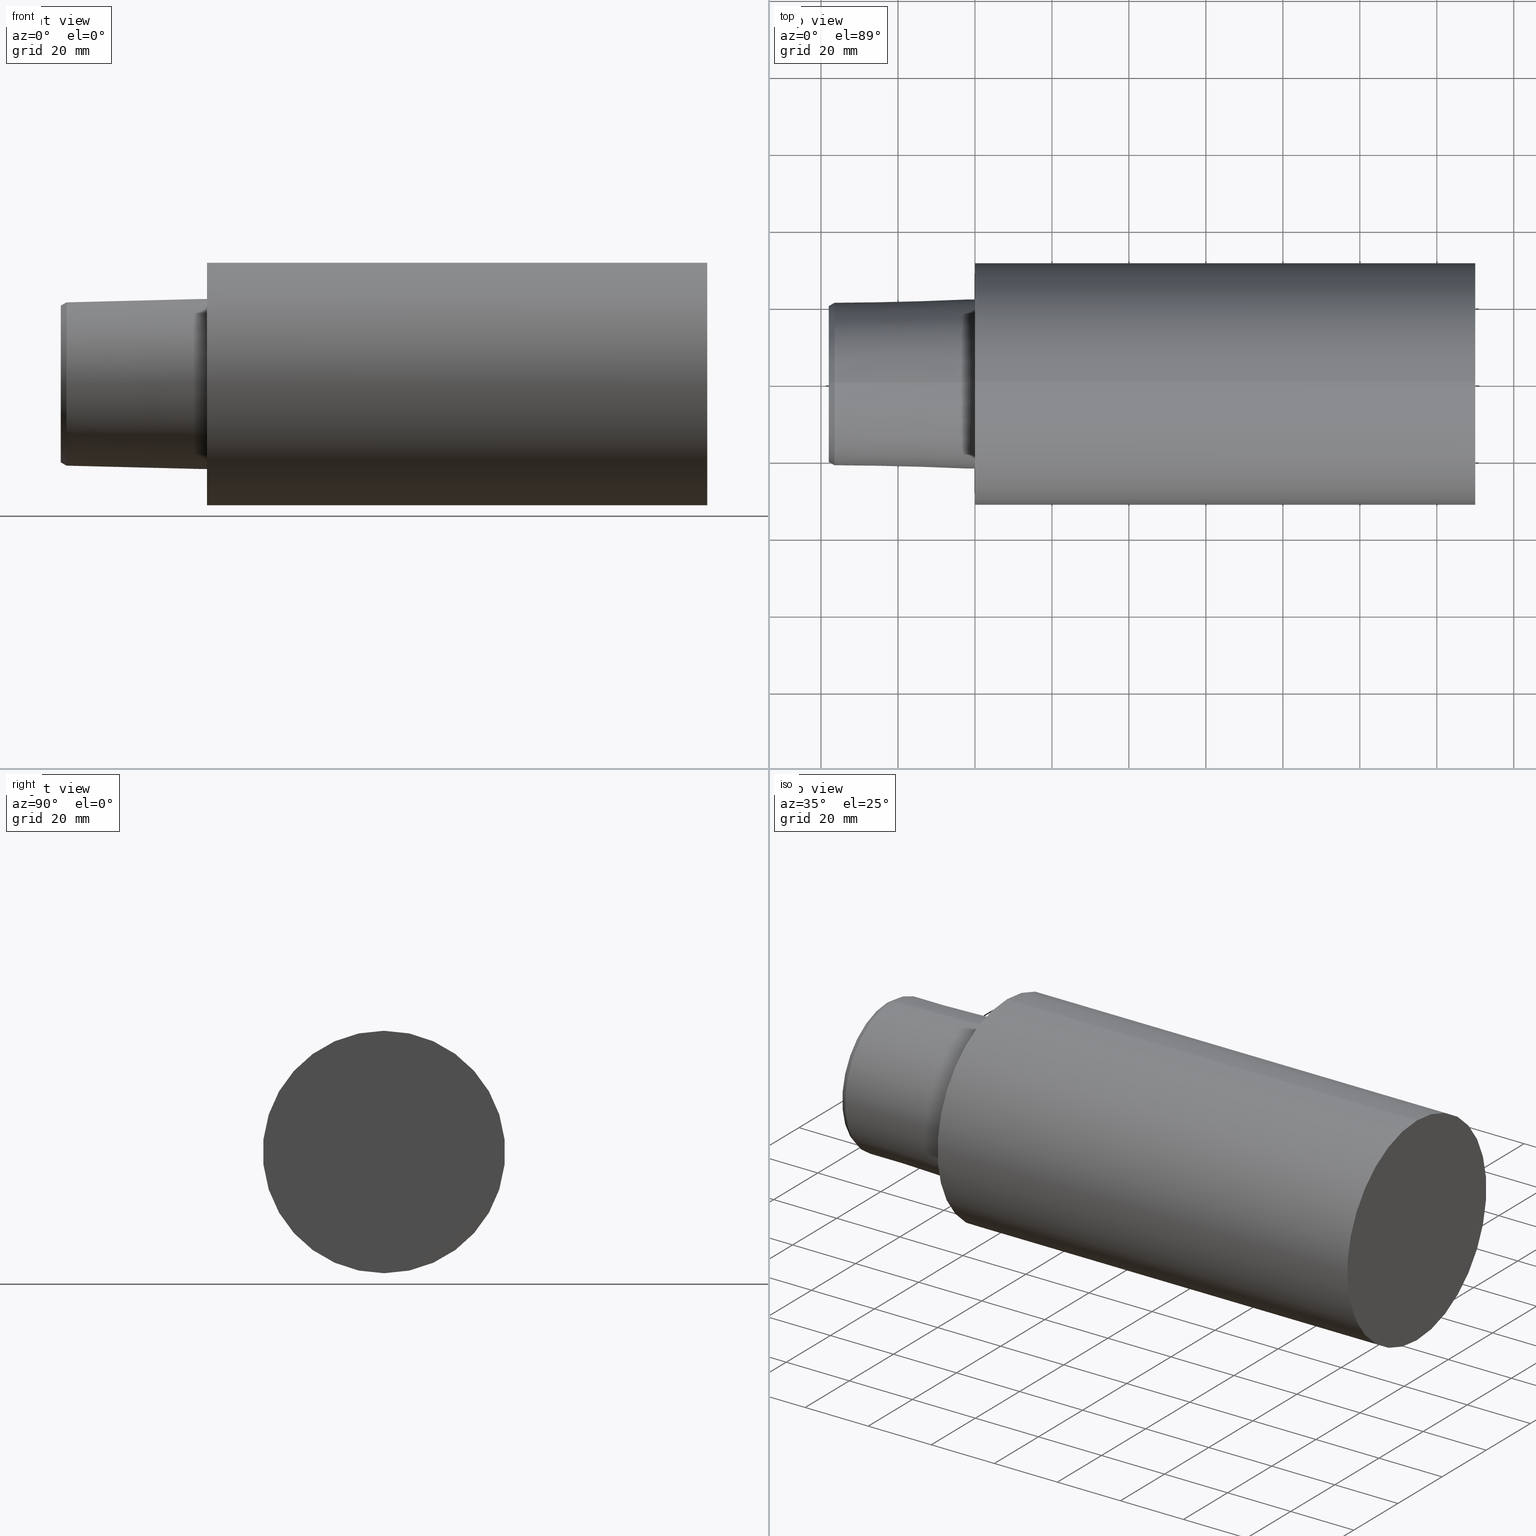
[diagram: canonical four-view strip — front | top / right | iso, engineering-drawing reading convention]
A machine part, canonical four-view strip (front | top / right | iso — engineering-drawing reading convention). The complete STEP part file that produces these views, byte-faithful:
ISO-10303-21;
HEADER;
FILE_DESCRIPTION (( 'STEP AP203' ),
    '1' );
FILE_NAME ('C6-F63-130.stp',
    '2022-03-11T15:31:57',
    ( '' ),
    ( '' ),
    'SwSTEP 2.0',
    'SolidWorks 2021',
    '' );
FILE_SCHEMA (( 'CONFIG_CONTROL_DESIGN' ));
ENDSEC;

DATA;
#1 = CARTESIAN_POINT ( 'NONE',  ( -1.638711037459195739E-09, 3.857637413726965239E-15, -31.49999997070834823 ) ) ;
#2 = FACE_OUTER_BOUND ( 'NONE', #254, .T. ) ;
#3 = DIRECTION ( 'NONE',  ( 0.000000000000000000, 0.000000000000000000, 1.000000000000000000 ) ) ;
#4 = CARTESIAN_POINT ( 'NONE',  ( -36.49999996440870120, 0.000000000000000000, -21.21334400120073482 ) ) ;
#5 = DIRECTION ( 'NONE',  ( -1.000000000000000000, 0.000000000000000000, 0.000000000000000000 ) ) ;
#6 = AXIS2_PLACEMENT_3D ( 'NONE', #106, #355, #108 ) ;
#7 = FACE_OUTER_BOUND ( 'NONE', #159, .T. ) ;
#8 = CONICAL_SURFACE ( 'NONE', #210, 22.07078639032614120, 0.02499311507610003230 ) ;
#9 = DIRECTION ( 'NONE',  ( -1.000000000000000000, 0.000000000000000000, 0.000000000000000000 ) ) ;
#10 = CC_DESIGN_DATE_AND_TIME_ASSIGNMENT ( #155, #302, ( #162 ) ) ;
#11 = FACE_OUTER_BOUND ( 'NONE', #350, .T. ) ;
#12 = DIRECTION ( 'NONE',  ( 0.000000000000000000, 0.000000000000000000, 1.000000000000000000 ) ) ;
#13 = CIRCLE ( 'NONE', #128, 20.34731859924573172 ) ;
#14 = AXIS2_PLACEMENT_3D ( 'NONE', #256, #90, #88 ) ;
#15 = PERSON_AND_ORGANIZATION ( #67, #97 ) ;
#16 = VERTEX_POINT ( 'NONE', #222 ) ;
#17 = DIRECTION ( 'NONE',  ( -1.000000000000000000, 0.000000000000000000, 0.000000000000000000 ) ) ;
#18 = VERTEX_POINT ( 'NONE', #55 ) ;
#19 = APPLICATION_PROTOCOL_DEFINITION ( 'international standard', 'config_control_design', 1994, #38 ) ;
#20 = ORIENTED_EDGE ( 'NONE', *, *, #94, .F. ) ;
#21 = CARTESIAN_POINT ( 'NONE',  ( -2.199999999394708361, 2.702891790757786195E-15, 22.07078639032614120 ) ) ;
#22 = ORIENTED_EDGE ( 'NONE', *, *, #161, .T. ) ;
#23 = CC_DESIGN_PERSON_AND_ORGANIZATION_ASSIGNMENT ( #71, #180, ( #162 ) ) ;
#24 = EDGE_CURVE ( 'NONE', #157, #253, #132, .T. ) ;
#25 = CARTESIAN_POINT ( 'NONE',  ( 129.9999998657614242, 0.000000000000000000, 0.000000000000000000 ) ) ;
#26 = PLANE ( 'NONE',  #48 ) ;
#27 = DIRECTION ( 'NONE',  ( -1.000000000000000000, 0.000000000000000000, 0.000000000000000000 ) ) ;
#28 = EDGE_LOOP ( 'NONE', ( #275, #311, #319, #343 ) ) ;
#29 = DIRECTION ( 'NONE',  ( 0.000000000000000000, 0.000000000000000000, 1.000000000000000000 ) ) ;
#30 = DIRECTION ( 'NONE',  ( 0.000000000000000000, 0.000000000000000000, -1.000000000000000000 ) ) ;
#31 = ADVANCED_FACE ( 'NONE', ( #191, #2 ), #26, .F. ) ;
#32 = DIRECTION ( 'NONE',  ( -1.000000000000000000, 0.000000000000000000, 0.000000000000000000 ) ) ;
#33 = CARTESIAN_POINT ( 'NONE',  ( -37.99999996124000035, 0.000000000000000000, -20.34731859924573172 ) ) ;
#34 = EDGE_CURVE ( 'NONE', #157, #282, #13, .T. ) ;
#35 = FACE_OUTER_BOUND ( 'NONE', #184, .T. ) ;
#36 = AXIS2_PLACEMENT_3D ( 'NONE', #260, #228, #199 ) ;
#37 = CARTESIAN_POINT ( 'NONE',  ( -2.199999999394708361, 0.000000000000000000, -22.07078639032614120 ) ) ;
#38 = APPLICATION_CONTEXT ( 'configuration controlled 3d designs of mechanical parts and assemblies' ) ;
#39 = COORDINATED_UNIVERSAL_TIME_OFFSET ( 6, 0, .BEHIND. ) ;
#40 = APPROVAL_DATE_TIME ( #293, #284 ) ;
#41 = AXIS2_PLACEMENT_3D ( 'NONE', #135, #27, #195 ) ;
#42 = EDGE_LOOP ( 'NONE', ( #178, #237, #22, #323 ) ) ;
#43 = EDGE_CURVE ( 'NONE', #77, #72, #53, .T. ) ;
#44 = CALENDAR_DATE ( 2022, 11, 3 ) ;
#45 =( NAMED_UNIT ( * ) SI_UNIT ( $, .STERADIAN. ) SOLID_ANGLE_UNIT ( ) );
#46 = EDGE_LOOP ( 'NONE', ( #165, #326 ) ) ;
#47 = EDGE_CURVE ( 'NONE', #16, #208, #279, .T. ) ;
#48 = AXIS2_PLACEMENT_3D ( 'NONE', #223, #221, #283 ) ;
#49 = CIRCLE ( 'NONE', #111, 31.49999997070834823 ) ;
#50 = VERTEX_POINT ( 'NONE', #83 ) ;
#51 = DIRECTION ( 'NONE',  ( -1.000000000000000000, 0.000000000000000000, 0.000000000000000000 ) ) ;
#52 = APPROVAL_STATUS ( 'not_yet_approved' ) ;
#53 = LINE ( 'NONE', #225, #113 ) ;
#54 = CIRCLE ( 'NONE', #82, 20.34731859924573172 ) ;
#55 = CARTESIAN_POINT ( 'NONE',  ( -1.638711037459195739E-09, 0.000000000000000000, 31.49999997070834823 ) ) ;
#56 = LINE ( 'NONE', #353, #198 ) ;
#57 = EDGE_CURVE ( 'NONE', #72, #18, #92, .T. ) ;
#58 = CARTESIAN_POINT ( 'NONE',  ( -37.99999996124000035, 0.000000000000000000, 0.000000000000000000 ) ) ;
#59 = EDGE_CURVE ( 'NONE', #247, #208, #56, .T. ) ;
#60 = CIRCLE ( 'NONE', #265, 22.07078639032614120 ) ;
#61 = DIRECTION ( 'NONE',  ( 1.000000000000000000, 0.000000000000000000, 0.000000000000000000 ) ) ;
#62 = CARTESIAN_POINT ( 'NONE',  ( -2.199999999394708361, 0.000000000000000000, 0.000000000000000000 ) ) ;
#63 = LOCAL_TIME ( 9, 31, 57.00000000000000000, #109 ) ;
#64 = LINE ( 'NONE', #4, #301 ) ;
#65 = LINE ( 'NONE', #37, #280 ) ;
#66 = CONICAL_SURFACE ( 'NONE', #329, 21.21334400120073482, 0.5235987755982987046 ) ;
#67 = PERSON ( 'UNSPECIFIED', 'UNSPECIFIED', 'UNSPECIFIED', ('UNSPECIFIED'), ('UNSPECIFIED'), ('UNSPECIFIED') ) ;
#68 = DIRECTION ( 'NONE',  ( 0.000000000000000000, 0.000000000000000000, 1.000000000000000000 ) ) ;
#69 = AXIS2_PLACEMENT_3D ( 'NONE', #322, #12, #271 ) ;
#70 = EDGE_CURVE ( 'NONE', #208, #16, #218, .T. ) ;
#71 = PERSON_AND_ORGANIZATION ( #67, #97 ) ;
#72 = VERTEX_POINT ( 'NONE', #1 ) ;
#73 = ORIENTED_EDGE ( 'NONE', *, *, #43, .F. ) ;
#74 = APPROVAL ( #102, 'UNSPECIFIED' ) ;
#75 = ORIENTED_EDGE ( 'NONE', *, *, #151, .F. ) ;
#76 = APPLICATION_CONTEXT ( 'configuration controlled 3d designs of mechanical parts and assemblies' ) ;
#77 = VERTEX_POINT ( 'NONE', #104 ) ;
#78 = CARTESIAN_POINT ( 'NONE',  ( -37.99999996124000035, 0.000000000000000000, 22.07078639032614120 ) ) ;
#79 = APPROVAL_DATE_TIME ( #217, #134 ) ;
#80 = CARTESIAN_POINT ( 'NONE',  ( -37.99999996124000035, 2.544856621203993748E-15, 20.34731859924573172 ) ) ;
#81 = CARTESIAN_POINT ( 'NONE',  ( -36.49999996440870120, 0.000000000000000000, 0.000000000000000000 ) ) ;
#82 = AXIS2_PLACEMENT_3D ( 'NONE', #268, #17, #266 ) ;
#83 = CARTESIAN_POINT ( 'NONE',  ( -36.49999996440870120, 0.000000000000000000, -21.21334400120073482 ) ) ;
#84 = LOCAL_TIME ( 9, 31, 57.00000000000000000, #39 ) ;
#85 = CARTESIAN_POINT ( 'NONE',  ( -2.199999999394708361, 0.000000000000000000, 0.000000000000000000 ) ) ;
#86 = FACE_OUTER_BOUND ( 'NONE', #348, .T. ) ;
#87 = CIRCLE ( 'NONE', #136, 31.49999997070834823 ) ;
#88 = DIRECTION ( 'NONE',  ( 0.000000000000000000, 0.000000000000000000, 1.000000000000000000 ) ) ;
#89 = CARTESIAN_POINT ( 'NONE',  ( -2.199999999394708361, 0.000000000000000000, 0.000000000000000000 ) ) ;
#90 = DIRECTION ( 'NONE',  ( -1.000000000000000000, 0.000000000000000000, 0.000000000000000000 ) ) ;
#91 = MANIFOLD_SOLID_BREP ( 'Scale1', #192 ) ;
#92 = CIRCLE ( 'NONE', #141, 31.49999997070834823 ) ;
#93 = DIRECTION ( 'NONE',  ( 0.000000000000000000, 0.000000000000000000, 1.000000000000000000 ) ) ;
#94 = EDGE_CURVE ( 'NONE', #110, #16, #140, .T. ) ;
#95 = APPROVAL_ROLE ( '' ) ;
#96 = ORIENTED_EDGE ( 'NONE', *, *, #255, .T. ) ;
#97 = ORGANIZATION ( 'UNSPECIFIED', 'UNSPECIFIED', '' ) ;
#98 = PERSON_AND_ORGANIZATION_ROLE ( 'design_supplier' ) ;
#99 = ORIENTED_EDGE ( 'NONE', *, *, #24, .F. ) ;
#100 = AXIS2_PLACEMENT_3D ( 'NONE', #188, #137, #304 ) ;
#101 = ORIENTED_EDGE ( 'NONE', *, *, #47, .F. ) ;
#102 = APPROVAL_STATUS ( 'not_yet_approved' ) ;
#103 = ORIENTED_EDGE ( 'NONE', *, *, #333, .F. ) ;
#104 = CARTESIAN_POINT ( 'NONE',  ( 129.9999998657614242, 3.857637413726965239E-15, -31.49999997070834823 ) ) ;
#105 = EDGE_CURVE ( 'NONE', #18, #72, #153, .T. ) ;
#106 = CARTESIAN_POINT ( 'NONE',  ( -1.638711037459195739E-09, 0.000000000000000000, 0.000000000000000000 ) ) ;
#107 = CC_DESIGN_SECURITY_CLASSIFICATION ( #162, ( #318 ) ) ;
#108 = DIRECTION ( 'NONE',  ( 0.000000000000000000, 0.000000000000000000, 1.000000000000000000 ) ) ;
#109 = COORDINATED_UNIVERSAL_TIME_OFFSET ( 6, 0, .BEHIND. ) ;
#110 = VERTEX_POINT ( 'NONE', #250 ) ;
#111 = AXIS2_PLACEMENT_3D ( 'NONE', #315, #32, #93 ) ;
#112 = CC_DESIGN_PERSON_AND_ORGANIZATION_ASSIGNMENT ( #15, #239, ( #318 ) ) ;
#113 = VECTOR ( 'NONE', #164, 1000.000000000000000 ) ;
#114 = AXIS2_PLACEMENT_3D ( 'NONE', #233, #9, #317 ) ;
#115 = DIRECTION ( 'NONE',  ( -1.000000000000000000, 0.000000000000000000, 0.000000000000000000 ) ) ;
#116 = CARTESIAN_POINT ( 'NONE',  ( -37.99999996124000035, 20.34731859924573172, 0.000000000000000000 ) ) ;
#117 = PRODUCT_DEFINITION_SHAPE ( 'NONE', 'NONE',  #138 ) ;
#118 = FACE_OUTER_BOUND ( 'NONE', #127, .T. ) ;
#119 = CYLINDRICAL_SURFACE ( 'NONE', #36, 22.07078639032614120 ) ;
#120 = CARTESIAN_POINT ( 'NONE',  ( -37.99999996124000035, 0.000000000000000000, 31.49999997070834823 ) ) ;
#121 = DIRECTION ( 'NONE',  ( 1.000000000000000000, 0.000000000000000000, 0.000000000000000000 ) ) ;
#122 = EDGE_CURVE ( 'NONE', #247, #110, #354, .T. ) ;
#123 = ORIENTED_EDGE ( 'NONE', *, *, #57, .T. ) ;
#124 = PERSON_AND_ORGANIZATION ( #67, #97 ) ;
#125 = ORIENTED_EDGE ( 'NONE', *, *, #43, .T. ) ;
#126 = CALENDAR_DATE ( 2022, 11, 3 ) ;
#127 = EDGE_LOOP ( 'NONE', ( #156, #125, #278, #154 ) ) ;
#128 = AXIS2_PLACEMENT_3D ( 'NONE', #58, #115, #167 ) ;
#129 = AXIS2_PLACEMENT_3D ( 'NONE', #116, #61, #235 ) ;
#130 = EDGE_LOOP ( 'NONE', ( #216, #321 ) ) ;
#131 =( LENGTH_UNIT ( ) NAMED_UNIT ( * ) SI_UNIT ( .MILLI., .METRE. ) );
#132 = LINE ( 'NONE', #249, #168 ) ;
#133 = CC_DESIGN_PERSON_AND_ORGANIZATION_ASSIGNMENT ( #320, #290, ( #138 ) ) ;
#134 = APPROVAL ( #52, 'UNSPECIFIED' ) ;
#135 = CARTESIAN_POINT ( 'NONE',  ( -1.638711037459195739E-09, 0.000000000000000000, 0.000000000000000000 ) ) ;
#136 = AXIS2_PLACEMENT_3D ( 'NONE', #25, #327, #220 ) ;
#137 = DIRECTION ( 'NONE',  ( -1.000000000000000000, 0.000000000000000000, 0.000000000000000000 ) ) ;
#138 = PRODUCT_DEFINITION ( 'UNKNOWN', '', #318, #202 ) ;
#139 = ORIENTED_EDGE ( 'NONE', *, *, #351, .F. ) ;
#140 = LINE ( 'NONE', #78, #147 ) ;
#141 = AXIS2_PLACEMENT_3D ( 'NONE', #194, #281, #310 ) ;
#142 = AXIS2_PLACEMENT_3D ( 'NONE', #312, #169, #257 ) ;
#143 = FACE_OUTER_BOUND ( 'NONE', #300, .T. ) ;
#144 = APPROVAL_PERSON_ORGANIZATION ( #189, #134, #274 ) ;
#145 = DIRECTION ( 'NONE',  ( 0.000000000000000000, 0.000000000000000000, 1.000000000000000000 ) ) ;
#146 = DIRECTION ( 'NONE',  ( -1.000000000000000000, 0.000000000000000000, 0.000000000000000000 ) ) ;
#147 = VECTOR ( 'NONE', #251, 1000.000000000000000 ) ;
#148 = VECTOR ( 'NONE', #146, 1000.000000000000000 ) ;
#149 = DIRECTION ( 'NONE',  ( 0.8660254037844387076, 0.000000000000000000, -0.4999999999999998890 ) ) ;
#150 = CARTESIAN_POINT ( 'NONE',  ( -1.638711037459195739E-09, 0.000000000000000000, 0.000000000000000000 ) ) ;
#151 = EDGE_CURVE ( 'NONE', #160, #77, #87, .T. ) ;
#152 = DATE_AND_TIME ( #183, #84 ) ;
#153 = CIRCLE ( 'NONE', #41, 31.49999997070834823 ) ;
#154 = ORIENTED_EDGE ( 'NONE', *, *, #203, .F. ) ;
#155 = DATE_AND_TIME ( #44, #305 ) ;
#156 = ORIENTED_EDGE ( 'NONE', *, *, #151, .T. ) ;
#157 = VERTEX_POINT ( 'NONE', #80 ) ;
#158 = AXIS2_PLACEMENT_3D ( 'NONE', #197, #5, #68 ) ;
#159 = EDGE_LOOP ( 'NONE', ( #75, #212 ) ) ;
#160 = VERTEX_POINT ( 'NONE', #325 ) ;
#161 = EDGE_CURVE ( 'NONE', #253, #50, #179, .T. ) ;
#162 = SECURITY_CLASSIFICATION ( '', '', #209 ) ;
#163 = DIRECTION ( 'NONE',  ( -1.000000000000000000, 0.000000000000000000, 0.000000000000000000 ) ) ;
#164 = DIRECTION ( 'NONE',  ( -1.000000000000000000, 0.000000000000000000, 0.000000000000000000 ) ) ;
#165 = ORIENTED_EDGE ( 'NONE', *, *, #255, .F. ) ;
#166 = DIRECTION ( 'NONE',  ( -1.000000000000000000, 0.000000000000000000, 0.000000000000000000 ) ) ;
#167 = DIRECTION ( 'NONE',  ( 0.000000000000000000, 0.000000000000000000, 1.000000000000000000 ) ) ;
#168 = VECTOR ( 'NONE', #330, 1000.000000000000000 ) ;
#169 = DIRECTION ( 'NONE',  ( -1.000000000000000000, 0.000000000000000000, 0.000000000000000000 ) ) ;
#170 = ADVANCED_FACE ( 'NONE', ( #307 ), #232, .T. ) ;
#171 = FACE_OUTER_BOUND ( 'NONE', #28, .T. ) ;
#172 = ADVANCED_FACE ( 'NONE', ( #35 ), #119, .T. ) ;
#173 = CYLINDRICAL_SURFACE ( 'NONE', #114, 22.07078639032614120 ) ;
#174 = CC_DESIGN_DATE_AND_TIME_ASSIGNMENT ( #152, #340, ( #138 ) ) ;
#175 = DIRECTION ( 'NONE',  ( -1.000000000000000000, 0.000000000000000000, 0.000000000000000000 ) ) ;
#176 = PERSON_AND_ORGANIZATION ( #67, #97 ) ;
#177 = CALENDAR_DATE ( 2022, 11, 3 ) ;
#178 = ORIENTED_EDGE ( 'NONE', *, *, #34, .F. ) ;
#179 = CIRCLE ( 'NONE', #100, 21.21334400120073482 ) ;
#180 = PERSON_AND_ORGANIZATION_ROLE ( 'classification_officer' ) ;
#181 = ORIENTED_EDGE ( 'NONE', *, *, #94, .T. ) ;
#182 = COORDINATED_UNIVERSAL_TIME_OFFSET ( 6, 0, .BEHIND. ) ;
#183 = CALENDAR_DATE ( 2022, 11, 3 ) ;
#184 = EDGE_LOOP ( 'NONE', ( #243, #190, #181, #297 ) ) ;
#185 = PRODUCT_RELATED_PRODUCT_CATEGORY ( 'detail', '', ( #298 ) ) ;
#186 = CC_DESIGN_PERSON_AND_ORGANIZATION_ASSIGNMENT ( #342, #98, ( #318 ) ) ;
#187 = ORIENTED_EDGE ( 'NONE', *, *, #333, .T. ) ;
#188 = CARTESIAN_POINT ( 'NONE',  ( -36.49999996440870120, 0.000000000000000000, 0.000000000000000000 ) ) ;
#189 = PERSON_AND_ORGANIZATION ( #67, #97 ) ;
#190 = ORIENTED_EDGE ( 'NONE', *, *, #122, .T. ) ;
#191 = FACE_BOUND ( 'NONE', #46, .T. ) ;
#192 = CLOSED_SHELL ( 'NONE', ( #245, #292, #227, #172, #31, #215, #263, #291, #196, #338, #170 ) ) ;
#193 = AXIS2_PLACEMENT_3D ( 'NONE', #314, #335, #145 ) ;
#194 = CARTESIAN_POINT ( 'NONE',  ( -1.638711037459195739E-09, 0.000000000000000000, 0.000000000000000000 ) ) ;
#195 = DIRECTION ( 'NONE',  ( 0.000000000000000000, 0.000000000000000000, 1.000000000000000000 ) ) ;
#196 = ADVANCED_FACE ( 'NONE', ( #261 ), #173, .T. ) ;
#197 = CARTESIAN_POINT ( 'NONE',  ( 129.9999998657612252, 0.000000000000000000, 0.000000000000000000 ) ) ;
#198 = VECTOR ( 'NONE', #166, 1000.000000000000000 ) ;
#199 = DIRECTION ( 'NONE',  ( 0.000000000000000000, 0.000000000000000000, 1.000000000000000000 ) ) ;
#200 = CC_DESIGN_APPROVAL ( #284, ( #318 ) ) ;
#201 = DIRECTION ( 'NONE',  ( 1.000000000000000000, 0.000000000000000000, 0.000000000000000000 ) ) ;
#202 = DESIGN_CONTEXT ( 'detailed design', #76, 'design' ) ;
#203 = EDGE_CURVE ( 'NONE', #160, #18, #288, .T. ) ;
#204 = DIRECTION ( 'NONE',  ( 0.000000000000000000, 0.000000000000000000, 1.000000000000000000 ) ) ;
#205 =( GEOMETRIC_REPRESENTATION_CONTEXT ( 3 ) GLOBAL_UNCERTAINTY_ASSIGNED_CONTEXT ( ( #336 ) ) GLOBAL_UNIT_ASSIGNED_CONTEXT ( ( #131, #272, #45 ) ) REPRESENTATION_CONTEXT ( 'NONE', 'WORKASPACE' ) );
#206 = CARTESIAN_POINT ( 'NONE',  ( -2.199999999394708361, 2.702891790757786195E-15, -22.07078639032614120 ) ) ;
#207 = COORDINATED_UNIVERSAL_TIME_OFFSET ( 6, 0, .BEHIND. ) ;
#208 = VERTEX_POINT ( 'NONE', #206 ) ;
#209 = SECURITY_CLASSIFICATION_LEVEL ( 'unclassified' ) ;
#210 = AXIS2_PLACEMENT_3D ( 'NONE', #89, #201, #344 ) ;
#211 = APPROVAL_ROLE ( '' ) ;
#212 = ORIENTED_EDGE ( 'NONE', *, *, #309, .F. ) ;
#213 = DATE_AND_TIME ( #126, #258 ) ;
#214 = ORIENTED_EDGE ( 'NONE', *, *, #105, .T. ) ;
#215 = ADVANCED_FACE ( 'NONE', ( #143 ), #259, .T. ) ;
#216 = ORIENTED_EDGE ( 'NONE', *, *, #351, .T. ) ;
#217 = DATE_AND_TIME ( #277, #63 ) ;
#218 = CIRCLE ( 'NONE', #264, 22.07078639032614120 ) ;
#219 = CONICAL_SURFACE ( 'NONE', #324, 22.07078639032614120, 0.02499311507610003230 ) ;
#220 = DIRECTION ( 'NONE',  ( 0.000000000000000000, 0.000000000000000000, 1.000000000000000000 ) ) ;
#221 = DIRECTION ( 'NONE',  ( 1.000000000000000000, 0.000000000000000000, 0.000000000000000000 ) ) ;
#222 = CARTESIAN_POINT ( 'NONE',  ( -2.199999999394708361, 0.000000000000000000, 22.07078639032614120 ) ) ;
#223 = CARTESIAN_POINT ( 'NONE',  ( -1.638710153022111881E-09, 31.49999997070834823, 0.000000000000000000 ) ) ;
#224 = VECTOR ( 'NONE', #296, 1000.000000000000114 ) ;
#225 = CARTESIAN_POINT ( 'NONE',  ( -37.99999996124000035, 3.857637413726965239E-15, -31.49999997070834823 ) ) ;
#226 = EDGE_CURVE ( 'NONE', #282, #50, #64, .T. ) ;
#227 = ADVANCED_FACE ( 'NONE', ( #86 ), #219, .T. ) ;
#228 = DIRECTION ( 'NONE',  ( -1.000000000000000000, 0.000000000000000000, 0.000000000000000000 ) ) ;
#229 = ADVANCED_BREP_SHAPE_REPRESENTATION ( 'C6-F63-130', ( #91, #69 ), #205 ) ;
#230 = FACE_OUTER_BOUND ( 'NONE', #130, .T. ) ;
#231 = AXIS2_PLACEMENT_3D ( 'NONE', #81, #308, #30 ) ;
#232 = CONICAL_SURFACE ( 'NONE', #231, 21.21334400120073482, 0.5235987755982987046 ) ;
#233 = CARTESIAN_POINT ( 'NONE',  ( -37.99999996124000035, 0.000000000000000000, 0.000000000000000000 ) ) ;
#234 = CARTESIAN_POINT ( 'NONE',  ( -1.638711037459195739E-09, 2.702891790757786195E-15, -22.07078639032614120 ) ) ;
#235 = DIRECTION ( 'NONE',  ( 0.000000000000000000, 1.000000000000000000, 0.000000000000000000 ) ) ;
#236 = APPROVAL_STATUS ( 'not_yet_approved' ) ;
#237 = ORIENTED_EDGE ( 'NONE', *, *, #24, .T. ) ;
#238 = CC_DESIGN_PERSON_AND_ORGANIZATION_ASSIGNMENT ( #124, #347, ( #298 ) ) ;
#239 = PERSON_AND_ORGANIZATION_ROLE ( 'creator' ) ;
#240 = CC_DESIGN_APPROVAL ( #74, ( #138 ) ) ;
#241 = ORIENTED_EDGE ( 'NONE', *, *, #59, .T. ) ;
#242 = APPROVAL_DATE_TIME ( #213, #74 ) ;
#243 = ORIENTED_EDGE ( 'NONE', *, *, #59, .F. ) ;
#244 = ORIENTED_EDGE ( 'NONE', *, *, #70, .T. ) ;
#245 = ADVANCED_FACE ( 'NONE', ( #230 ), #287, .F. ) ;
#246 = MECHANICAL_CONTEXT ( 'NONE', #38, 'mechanical' ) ;
#247 = VERTEX_POINT ( 'NONE', #234 ) ;
#248 = SHAPE_DEFINITION_REPRESENTATION ( #117, #229 ) ;
#249 = CARTESIAN_POINT ( 'NONE',  ( -36.49999996440870120, 2.597885383028215483E-15, 21.21334400120073482 ) ) ;
#250 = CARTESIAN_POINT ( 'NONE',  ( -1.638711037459195739E-09, 0.000000000000000000, 22.07078639032614120 ) ) ;
#251 = DIRECTION ( 'NONE',  ( -1.000000000000000000, 0.000000000000000000, 0.000000000000000000 ) ) ;
#252 = APPROVAL_PERSON_ORGANIZATION ( #262, #284, #95 ) ;
#253 = VERTEX_POINT ( 'NONE', #332 ) ;
#254 = EDGE_LOOP ( 'NONE', ( #214, #123 ) ) ;
#255 = EDGE_CURVE ( 'NONE', #110, #247, #60, .T. ) ;
#256 = CARTESIAN_POINT ( 'NONE',  ( -37.99999996124000035, 0.000000000000000000, 0.000000000000000000 ) ) ;
#257 = DIRECTION ( 'NONE',  ( 0.000000000000000000, 0.000000000000000000, 1.000000000000000000 ) ) ;
#258 = LOCAL_TIME ( 9, 31, 57.00000000000000000, #182 ) ;
#259 = CYLINDRICAL_SURFACE ( 'NONE', #14, 31.49999997070834823 ) ;
#260 = CARTESIAN_POINT ( 'NONE',  ( -37.99999996124000035, 0.000000000000000000, 0.000000000000000000 ) ) ;
#261 = FACE_OUTER_BOUND ( 'NONE', #267, .T. ) ;
#262 = PERSON_AND_ORGANIZATION ( #67, #97 ) ;
#263 = ADVANCED_FACE ( 'NONE', ( #7 ), #339, .F. ) ;
#264 = AXIS2_PLACEMENT_3D ( 'NONE', #85, #163, #29 ) ;
#265 = AXIS2_PLACEMENT_3D ( 'NONE', #150, #175, #204 ) ;
#266 = DIRECTION ( 'NONE',  ( 0.000000000000000000, 0.000000000000000000, 1.000000000000000000 ) ) ;
#267 = EDGE_LOOP ( 'NONE', ( #96, #241, #101, #20 ) ) ;
#268 = CARTESIAN_POINT ( 'NONE',  ( -37.99999996124000035, 0.000000000000000000, 0.000000000000000000 ) ) ;
#269 = CC_DESIGN_APPROVAL ( #134, ( #162 ) ) ;
#270 = ORIENTED_EDGE ( 'NONE', *, *, #316, .T. ) ;
#271 = DIRECTION ( 'NONE',  ( 1.000000000000000000, 0.000000000000000000, 0.000000000000000000 ) ) ;
#272 =( NAMED_UNIT ( * ) PLANE_ANGLE_UNIT ( ) SI_UNIT ( $, .RADIAN. ) );
#273 = ORIENTED_EDGE ( 'NONE', *, *, #352, .F. ) ;
#274 = APPROVAL_ROLE ( '' ) ;
#275 = ORIENTED_EDGE ( 'NONE', *, *, #161, .F. ) ;
#276 = LOCAL_TIME ( 9, 31, 57.00000000000000000, #207 ) ;
#277 = CALENDAR_DATE ( 2022, 11, 3 ) ;
#278 = ORIENTED_EDGE ( 'NONE', *, *, #105, .F. ) ;
#279 = CIRCLE ( 'NONE', #328, 22.07078639032614120 ) ;
#280 = VECTOR ( 'NONE', #313, 1000.000000000000114 ) ;
#281 = DIRECTION ( 'NONE',  ( -1.000000000000000000, 0.000000000000000000, 0.000000000000000000 ) ) ;
#282 = VERTEX_POINT ( 'NONE', #33 ) ;
#283 = DIRECTION ( 'NONE',  ( 0.000000000000000000, 1.000000000000000000, 0.000000000000000000 ) ) ;
#284 = APPROVAL ( #236, 'UNSPECIFIED' ) ;
#285 = CARTESIAN_POINT ( 'NONE',  ( -36.49999996440870120, 0.000000000000000000, 0.000000000000000000 ) ) ;
#286 = DIRECTION ( 'NONE',  ( 0.000000000000000000, 0.000000000000000000, -1.000000000000000000 ) ) ;
#287 = PLANE ( 'NONE',  #129 ) ;
#288 = LINE ( 'NONE', #120, #148 ) ;
#289 = DIRECTION ( 'NONE',  ( 0.000000000000000000, 0.000000000000000000, -1.000000000000000000 ) ) ;
#290 = PERSON_AND_ORGANIZATION_ROLE ( 'creator' ) ;
#291 = ADVANCED_FACE ( 'NONE', ( #118 ), #334, .T. ) ;
#292 = ADVANCED_FACE ( 'NONE', ( #11 ), #66, .T. ) ;
#293 = DATE_AND_TIME ( #177, #276 ) ;
#294 = COORDINATED_UNIVERSAL_TIME_OFFSET ( 6, 0, .BEHIND. ) ;
#295 = ORIENTED_EDGE ( 'NONE', *, *, #309, .T. ) ;
#296 = DIRECTION ( 'NONE',  ( 0.9996876883571774730, 3.060455192797006293E-18, 0.02499051314164881313 ) ) ;
#297 = ORIENTED_EDGE ( 'NONE', *, *, #70, .F. ) ;
#298 = PRODUCT ( 'C6-F63-130', 'C6-F63-130', '', ( #246 ) ) ;
#299 = LINE ( 'NONE', #21, #224 ) ;
#300 = EDGE_LOOP ( 'NONE', ( #73, #295, #303, #345 ) ) ;
#301 = VECTOR ( 'NONE', #149, 1000.000000000000000 ) ;
#302 = DATE_TIME_ROLE ( 'classification_date' ) ;
#303 = ORIENTED_EDGE ( 'NONE', *, *, #203, .T. ) ;
#304 = DIRECTION ( 'NONE',  ( 0.000000000000000000, 0.000000000000000000, 1.000000000000000000 ) ) ;
#305 = LOCAL_TIME ( 9, 31, 57.00000000000000000, #294 ) ;
#306 = APPROVAL_PERSON_ORGANIZATION ( #176, #74, #211 ) ;
#307 = FACE_OUTER_BOUND ( 'NONE', #42, .T. ) ;
#308 = DIRECTION ( 'NONE',  ( 1.000000000000000000, 0.000000000000000000, 0.000000000000000000 ) ) ;
#309 = EDGE_CURVE ( 'NONE', #77, #160, #49, .T. ) ;
#310 = DIRECTION ( 'NONE',  ( 0.000000000000000000, 0.000000000000000000, 1.000000000000000000 ) ) ;
#311 = ORIENTED_EDGE ( 'NONE', *, *, #352, .T. ) ;
#312 = CARTESIAN_POINT ( 'NONE',  ( -37.99999996124000035, 0.000000000000000000, 0.000000000000000000 ) ) ;
#313 = DIRECTION ( 'NONE',  ( 0.9996876883571774730, 0.000000000000000000, -0.02499051314164881313 ) ) ;
#314 = CARTESIAN_POINT ( 'NONE',  ( -36.49999996440870120, 0.000000000000000000, 0.000000000000000000 ) ) ;
#315 = CARTESIAN_POINT ( 'NONE',  ( 129.9999998657614242, 0.000000000000000000, 0.000000000000000000 ) ) ;
#316 = EDGE_CURVE ( 'NONE', #50, #208, #65, .T. ) ;
#317 = DIRECTION ( 'NONE',  ( 0.000000000000000000, 0.000000000000000000, 1.000000000000000000 ) ) ;
#318 = PRODUCT_DEFINITION_FORMATION_WITH_SPECIFIED_SOURCE ( 'ANY', '', #298, .NOT_KNOWN. ) ;
#319 = ORIENTED_EDGE ( 'NONE', *, *, #47, .T. ) ;
#320 = PERSON_AND_ORGANIZATION ( #67, #97 ) ;
#321 = ORIENTED_EDGE ( 'NONE', *, *, #34, .T. ) ;
#322 = CARTESIAN_POINT ( 'NONE',  ( 0.000000000000000000, 0.000000000000000000, 0.000000000000000000 ) ) ;
#323 = ORIENTED_EDGE ( 'NONE', *, *, #226, .F. ) ;
#324 = AXIS2_PLACEMENT_3D ( 'NONE', #62, #121, #289 ) ;
#325 = CARTESIAN_POINT ( 'NONE',  ( 129.9999998657614242, 0.000000000000000000, 31.49999997070834823 ) ) ;
#326 = ORIENTED_EDGE ( 'NONE', *, *, #122, .F. ) ;
#327 = DIRECTION ( 'NONE',  ( -1.000000000000000000, 0.000000000000000000, 0.000000000000000000 ) ) ;
#328 = AXIS2_PLACEMENT_3D ( 'NONE', #331, #51, #3 ) ;
#329 = AXIS2_PLACEMENT_3D ( 'NONE', #285, #337, #286 ) ;
#330 = DIRECTION ( 'NONE',  ( 0.8660254037844387076, 6.123233995736768501E-17, 0.4999999999999998890 ) ) ;
#331 = CARTESIAN_POINT ( 'NONE',  ( -2.199999999394708361, 0.000000000000000000, 0.000000000000000000 ) ) ;
#332 = CARTESIAN_POINT ( 'NONE',  ( -36.49999996440870120, 2.650388586893000642E-15, 21.21334400120073482 ) ) ;
#333 = EDGE_CURVE ( 'NONE', #50, #253, #346, .T. ) ;
#334 = CYLINDRICAL_SURFACE ( 'NONE', #142, 31.49999997070834823 ) ;
#335 = DIRECTION ( 'NONE',  ( -1.000000000000000000, 0.000000000000000000, 0.000000000000000000 ) ) ;
#336 = UNCERTAINTY_MEASURE_WITH_UNIT (LENGTH_MEASURE( 1.000000000000000082E-05 ), #131, 'distance_accuracy_value', 'NONE');
#337 = DIRECTION ( 'NONE',  ( 1.000000000000000000, 0.000000000000000000, 0.000000000000000000 ) ) ;
#338 = ADVANCED_FACE ( 'NONE', ( #171 ), #8, .T. ) ;
#339 = PLANE ( 'NONE',  #158 ) ;
#340 = DATE_TIME_ROLE ( 'creation_date' ) ;
#341 = ORIENTED_EDGE ( 'NONE', *, *, #226, .T. ) ;
#342 = PERSON_AND_ORGANIZATION ( #67, #97 ) ;
#343 = ORIENTED_EDGE ( 'NONE', *, *, #316, .F. ) ;
#344 = DIRECTION ( 'NONE',  ( 0.000000000000000000, 0.000000000000000000, -1.000000000000000000 ) ) ;
#345 = ORIENTED_EDGE ( 'NONE', *, *, #57, .F. ) ;
#346 = CIRCLE ( 'NONE', #193, 21.21334400120073482 ) ;
#347 = PERSON_AND_ORGANIZATION_ROLE ( 'design_owner' ) ;
#348 = EDGE_LOOP ( 'NONE', ( #273, #103, #270, #244 ) ) ;
#349 = APPLICATION_PROTOCOL_DEFINITION ( 'international standard', 'config_control_design', 1994, #76 ) ;
#350 = EDGE_LOOP ( 'NONE', ( #99, #139, #341, #187 ) ) ;
#351 = EDGE_CURVE ( 'NONE', #282, #157, #54, .T. ) ;
#352 = EDGE_CURVE ( 'NONE', #253, #16, #299, .T. ) ;
#353 = CARTESIAN_POINT ( 'NONE',  ( -37.99999996124000035, 2.702891790757786195E-15, -22.07078639032614120 ) ) ;
#354 = CIRCLE ( 'NONE', #6, 22.07078639032614120 ) ;
#355 = DIRECTION ( 'NONE',  ( -1.000000000000000000, 0.000000000000000000, 0.000000000000000000 ) ) ;
ENDSEC;
END-ISO-10303-21;
